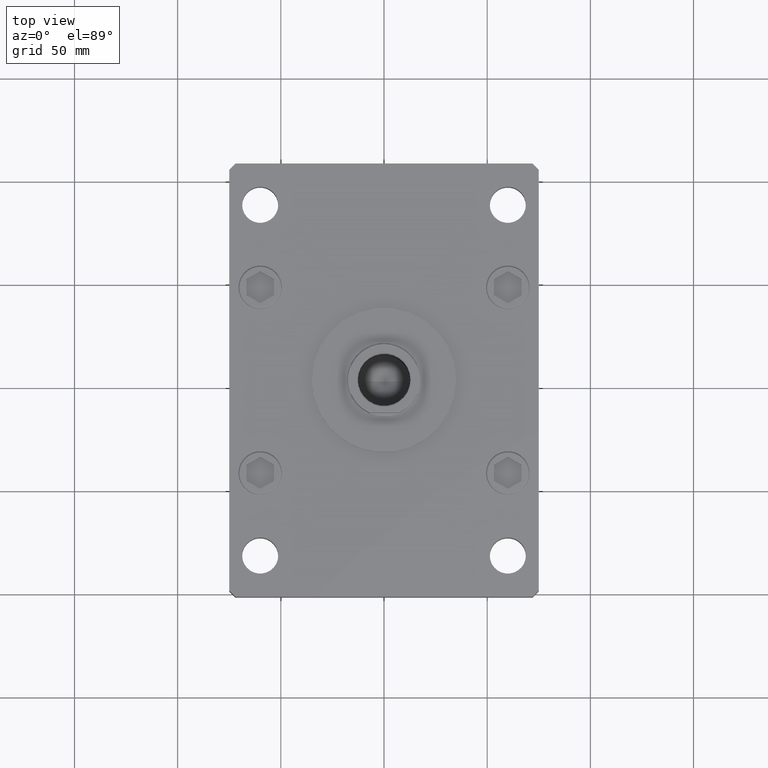
[diagram: clean part render]
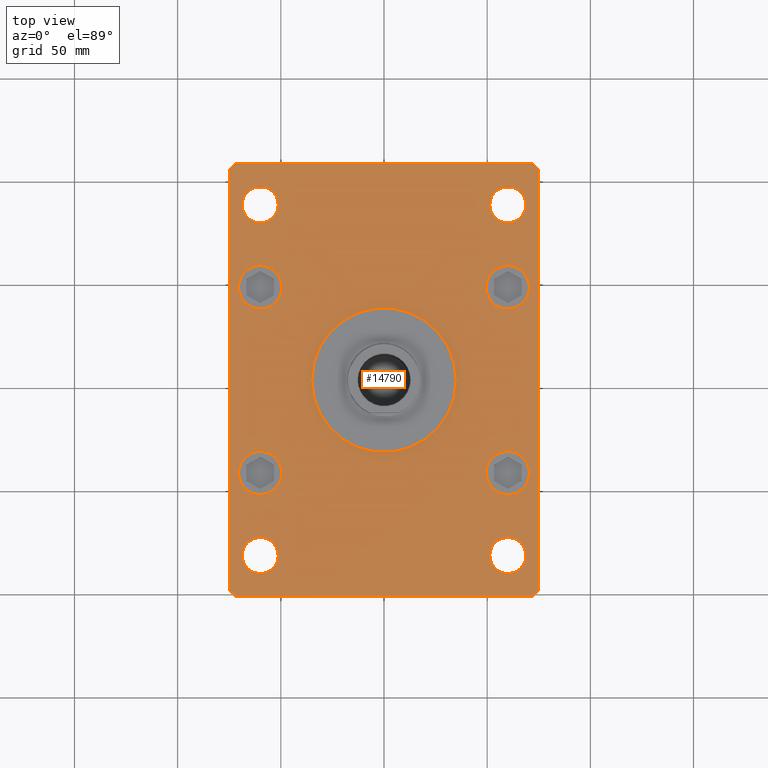
[diagram: same view with one face highlighted and labeled with its STEP entity id]
A machine part, top view. The second image highlights one B-rep face of the part: STEP entity #14790.
In plain terms, the highlighted planar face has unit normal (0, 0, 1).
Its self-contained STEP definition (entity closure, byte-faithful):
#267 = EDGE_LOOP ( 'NONE', ( #23808, #46708 ) ) ;
#318 = CARTESIAN_POINT ( 'NONE',  ( -68.74999999999997158, -85.00000000000001421, 27.00000000000000000 ) ) ;
#1099 = AXIS2_PLACEMENT_3D ( 'NONE', #13096, #36911, #21494 ) ;
#1207 = DIRECTION ( 'NONE',  ( 0.000000000000000000, 0.000000000000000000, 1.000000000000000000 ) ) ;
#1788 = EDGE_CURVE ( 'NONE', #11856, #29723, #22510, .T. ) ;
#2093 = EDGE_LOOP ( 'NONE', ( #29122, #27909 ) ) ;
#2627 = AXIS2_PLACEMENT_3D ( 'NONE', #17831, #34310, #18375 ) ;
#2673 = VECTOR ( 'NONE', #32609, 1000.000000000000000 ) ;
#2677 = DIRECTION ( 'NONE',  ( 0.7071067811865459074, 0.7071067811865491270, 0.000000000000000000 ) ) ;
#3115 = EDGE_CURVE ( 'NONE', #48423, #33778, #37918, .T. ) ;
#3130 = DIRECTION ( 'NONE',  ( 0.000000000000000000, 0.000000000000000000, 1.000000000000000000 ) ) ;
#3194 = EDGE_CURVE ( 'NONE', #22739, #17538, #29295, .T. ) ;
#3248 = DIRECTION ( 'NONE',  ( 1.000000000000000000, 0.000000000000000000, 0.000000000000000000 ) ) ;
#3357 = CIRCLE ( 'NONE', #23265, 8.750000000000007105 ) ;
#3387 = DIRECTION ( 'NONE',  ( 0.000000000000000000, 0.000000000000000000, 1.000000000000000000 ) ) ;
#3500 = EDGE_CURVE ( 'NONE', #29723, #11856, #50933, .T. ) ;
#3729 = PLANE ( 'NONE',  #21012 ) ;
#3789 = EDGE_CURVE ( 'NONE', #34593, #20591, #3357, .T. ) ;
#3826 = ORIENTED_EDGE ( 'NONE', *, *, #17094, .T. ) ;
#4953 = EDGE_CURVE ( 'NONE', #5034, #21655, #29931, .T. ) ;
#5034 = VERTEX_POINT ( 'NONE', #13167 ) ;
#5644 = CARTESIAN_POINT ( 'NONE',  ( 68.74999999999997158, -85.00000000000001421, 27.00000000000000000 ) ) ;
#5770 = DIRECTION ( 'NONE',  ( 0.000000000000000000, 0.000000000000000000, 1.000000000000000000 ) ) ;
#5784 = CARTESIAN_POINT ( 'NONE',  ( 68.75000000000000000, 84.99999999999998579, 27.00000000000000000 ) ) ;
#6185 = CARTESIAN_POINT ( 'NONE',  ( 0.000000000000000000, 0.000000000000000000, 27.00000000000000000 ) ) ;
#6378 = CARTESIAN_POINT ( 'NONE',  ( -74.99999999999998579, -102.0000000000000142, 27.00000000000000000 ) ) ;
#6907 = AXIS2_PLACEMENT_3D ( 'NONE', #10573, #22247, #10040 ) ;
#7283 = VECTOR ( 'NONE', #7426, 1000.000000000000000 ) ;
#7426 = DIRECTION ( 'NONE',  ( -1.000000000000000000, -1.927470528863118062E-16, 0.000000000000000000 ) ) ;
#7621 = DIRECTION ( 'NONE',  ( 1.000000000000000000, 0.000000000000000000, 0.000000000000000000 ) ) ;
#7710 = VECTOR ( 'NONE', #34248, 1000.000000000000114 ) ;
#7776 = FACE_BOUND ( 'NONE', #40697, .T. ) ;
#7831 = EDGE_CURVE ( 'NONE', #33239, #49473, #18624, .T. ) ;
#7932 = EDGE_CURVE ( 'NONE', #21655, #25640, #36697, .T. ) ;
#8049 = ORIENTED_EDGE ( 'NONE', *, *, #4953, .T. ) ;
#8146 = VERTEX_POINT ( 'NONE', #43167 ) ;
#8225 = CARTESIAN_POINT ( 'NONE',  ( -70.50000000000000000, 45.00000000000001421, 27.00000000000000000 ) ) ;
#9032 = CARTESIAN_POINT ( 'NONE',  ( -75.00000000000001421, 102.0000000000000000, 27.00000000000000000 ) ) ;
#9894 = EDGE_CURVE ( 'NONE', #8146, #42978, #15162, .T. ) ;
#10004 = VERTEX_POINT ( 'NONE', #50015 ) ;
#10040 = DIRECTION ( 'NONE',  ( 1.000000000000000000, 0.000000000000000000, 0.000000000000000000 ) ) ;
#10275 = DIRECTION ( 'NONE',  ( 1.000000000000000000, 0.000000000000000000, 0.000000000000000000 ) ) ;
#10573 = CARTESIAN_POINT ( 'NONE',  ( -60.00000000000000000, 45.00000000000001421, 27.00000000000000000 ) ) ;
#10614 = CARTESIAN_POINT ( 'NONE',  ( 0.000000000000000000, 0.000000000000000000, 27.00000000000000000 ) ) ;
#10786 = DIRECTION ( 'NONE',  ( 1.000000000000000000, 0.000000000000000000, 0.000000000000000000 ) ) ;
#10821 = CARTESIAN_POINT ( 'NONE',  ( 75.00000000000000000, -101.9999999999999005, 27.00000000000000000 ) ) ;
#11245 = AXIS2_PLACEMENT_3D ( 'NONE', #30307, #51437, #10275 ) ;
#11309 = EDGE_CURVE ( 'NONE', #49751, #22943, #19180, .T. ) ;
#11856 = VERTEX_POINT ( 'NONE', #33574 ) ;
#11880 = DIRECTION ( 'NONE',  ( 0.000000000000000000, 0.000000000000000000, 1.000000000000000000 ) ) ;
#12012 = LINE ( 'NONE', #28001, #7283 ) ;
#12103 = DIRECTION ( 'NONE',  ( 1.000000000000000000, 0.000000000000000000, -0.000000000000000000 ) ) ;
#12636 = FACE_BOUND ( 'NONE', #2093, .T. ) ;
#12649 = CARTESIAN_POINT ( 'NONE',  ( 70.50000000000000000, 45.00000000000000711, 27.00000000000000000 ) ) ;
#12964 = AXIS2_PLACEMENT_3D ( 'NONE', #24409, #20881, #16820 ) ;
#13096 = CARTESIAN_POINT ( 'NONE',  ( -59.99999999999997158, -85.00000000000001421, 27.00000000000000000 ) ) ;
#13167 = CARTESIAN_POINT ( 'NONE',  ( -72.00000000000002842, 105.0000000000000000, 27.00000000000000000 ) ) ;
#13753 = VERTEX_POINT ( 'NONE', #17844 ) ;
#13792 = CARTESIAN_POINT ( 'NONE',  ( 49.50000000000000000, -45.00000000000000711, 27.00000000000000000 ) ) ;
#14043 = DIRECTION ( 'NONE',  ( 1.000000000000000000, 0.000000000000000000, 0.000000000000000000 ) ) ;
#14647 = LINE ( 'NONE', #17449, #50887 ) ;
#14790 = ADVANCED_FACE ( 'NONE', ( #33198, #15915, #32655, #16167, #44844, #29139, #41328, #12636, #7776, #53525 ), #3729, .T. ) ;
#14890 = CARTESIAN_POINT ( 'NONE',  ( -60.00000000000000000, 45.00000000000001421, 27.00000000000000000 ) ) ;
#15162 = LINE ( 'NONE', #10821, #39864 ) ;
#15433 = AXIS2_PLACEMENT_3D ( 'NONE', #38290, #1207, #38015 ) ;
#15650 = CARTESIAN_POINT ( 'NONE',  ( 72.00000000000001421, -104.9999999999999005, 27.00000000000000000 ) ) ;
#15915 = FACE_BOUND ( 'NONE', #41303, .T. ) ;
#15922 = DIRECTION ( 'NONE',  ( 0.000000000000000000, 0.000000000000000000, 1.000000000000000000 ) ) ;
#15985 = CARTESIAN_POINT ( 'NONE',  ( 35.00000000000000711, 4.286263797015737285E-15, 27.00000000000000000 ) ) ;
#16167 = FACE_BOUND ( 'NONE', #21055, .T. ) ;
#16820 = DIRECTION ( 'NONE',  ( 1.000000000000000000, 0.000000000000000000, 0.000000000000000000 ) ) ;
#17056 = ORIENTED_EDGE ( 'NONE', *, *, #11309, .F. ) ;
#17094 = EDGE_CURVE ( 'NONE', #25640, #33239, #35049, .T. ) ;
#17206 = ORIENTED_EDGE ( 'NONE', *, *, #34185, .T. ) ;
#17227 = CARTESIAN_POINT ( 'NONE',  ( -72.00000000000002842, 105.0000000000000000, 27.00000000000000000 ) ) ;
#17261 = ORIENTED_EDGE ( 'NONE', *, *, #38504, .F. ) ;
#17335 = ORIENTED_EDGE ( 'NONE', *, *, #26336, .F. ) ;
#17376 = CARTESIAN_POINT ( 'NONE',  ( 70.50000000000000000, -45.00000000000000711, 27.00000000000000000 ) ) ;
#17449 = CARTESIAN_POINT ( 'NONE',  ( 75.00000000000001421, 102.0000000000000142, 27.00000000000000000 ) ) ;
#17538 = VERTEX_POINT ( 'NONE', #36976 ) ;
#17548 = CIRCLE ( 'NONE', #1099, 8.750000000000007105 ) ;
#17616 = AXIS2_PLACEMENT_3D ( 'NONE', #23254, #15922, #10786 ) ;
#17697 = CARTESIAN_POINT ( 'NONE',  ( 60.00000000000000000, -45.00000000000000711, 27.00000000000000000 ) ) ;
#17831 = CARTESIAN_POINT ( 'NONE',  ( -60.00000000000000711, 84.99999999999997158, 27.00000000000000000 ) ) ;
#17844 = CARTESIAN_POINT ( 'NONE',  ( 72.00000000000004263, 105.0000000000000284, 27.00000000000000000 ) ) ;
#18240 = ORIENTED_EDGE ( 'NONE', *, *, #3194, .F. ) ;
#18375 = DIRECTION ( 'NONE',  ( 1.000000000000000000, 0.000000000000000000, 0.000000000000000000 ) ) ;
#18403 = EDGE_LOOP ( 'NONE', ( #17056, #51574 ) ) ;
#18517 = DIRECTION ( 'NONE',  ( 1.000000000000000000, 0.000000000000000000, 0.000000000000000000 ) ) ;
#18624 = LINE ( 'NONE', #35092, #31153 ) ;
#18947 = AXIS2_PLACEMENT_3D ( 'NONE', #44254, #3387, #32057 ) ;
#19150 = ORIENTED_EDGE ( 'NONE', *, *, #20949, .F. ) ;
#19180 = CIRCLE ( 'NONE', #49396, 35.00000000000000711 ) ;
#19200 = LINE ( 'NONE', #15650, #22576 ) ;
#19616 = CARTESIAN_POINT ( 'NONE',  ( 60.00000000000000000, 45.00000000000000711, 27.00000000000000000 ) ) ;
#19826 = DIRECTION ( 'NONE',  ( 1.000000000000000000, 0.000000000000000000, 0.000000000000000000 ) ) ;
#20591 = VERTEX_POINT ( 'NONE', #39420 ) ;
#20881 = DIRECTION ( 'NONE',  ( 0.000000000000000000, 0.000000000000000000, 1.000000000000000000 ) ) ;
#20949 = EDGE_CURVE ( 'NONE', #21697, #10004, #29179, .T. ) ;
#21012 = AXIS2_PLACEMENT_3D ( 'NONE', #28878, #25102, #12103 ) ;
#21055 = EDGE_LOOP ( 'NONE', ( #34017, #48040 ) ) ;
#21405 = EDGE_LOOP ( 'NONE', ( #50141, #34784 ) ) ;
#21494 = DIRECTION ( 'NONE',  ( 1.000000000000000000, 0.000000000000000000, 0.000000000000000000 ) ) ;
#21655 = VERTEX_POINT ( 'NONE', #9032 ) ;
#21697 = VERTEX_POINT ( 'NONE', #5784 ) ;
#21755 = CIRCLE ( 'NONE', #42493, 10.50000000000000178 ) ;
#21785 = DIRECTION ( 'NONE',  ( -0.7071067811865426878, 0.7071067811865524577, 0.000000000000000000 ) ) ;
#22247 = DIRECTION ( 'NONE',  ( 0.000000000000000000, 0.000000000000000000, 1.000000000000000000 ) ) ;
#22510 = CIRCLE ( 'NONE', #11245, 10.50000000000000178 ) ;
#22576 = VECTOR ( 'NONE', #2677, 1000.000000000000114 ) ;
#22739 = VERTEX_POINT ( 'NONE', #318 ) ;
#22943 = VERTEX_POINT ( 'NONE', #15985 ) ;
#23075 = VECTOR ( 'NONE', #43182, 1000.000000000000114 ) ;
#23254 = CARTESIAN_POINT ( 'NONE',  ( 60.00000000000000000, -45.00000000000000711, 27.00000000000000000 ) ) ;
#23265 = AXIS2_PLACEMENT_3D ( 'NONE', #51392, #44041, #43517 ) ;
#23702 = ORIENTED_EDGE ( 'NONE', *, *, #35099, .F. ) ;
#23808 = ORIENTED_EDGE ( 'NONE', *, *, #3115, .F. ) ;
#23969 = CARTESIAN_POINT ( 'NONE',  ( 60.00000000000000000, 45.00000000000000711, 27.00000000000000000 ) ) ;
#24409 = CARTESIAN_POINT ( 'NONE',  ( 60.00000000000000000, 84.99999999999998579, 27.00000000000000000 ) ) ;
#24922 = CIRCLE ( 'NONE', #15433, 8.750000000000007105 ) ;
#25041 = VERTEX_POINT ( 'NONE', #52677 ) ;
#25102 = DIRECTION ( 'NONE',  ( 0.000000000000000000, 0.000000000000000000, 1.000000000000000000 ) ) ;
#25640 = VERTEX_POINT ( 'NONE', #27371 ) ;
#26336 = EDGE_CURVE ( 'NONE', #25041, #26373, #44913, .T. ) ;
#26373 = VERTEX_POINT ( 'NONE', #8225 ) ;
#26716 = CARTESIAN_POINT ( 'NONE',  ( 75.00000000000001421, 102.0000000000000142, 27.00000000000000000 ) ) ;
#27371 = CARTESIAN_POINT ( 'NONE',  ( -74.99999999999998579, -102.0000000000000142, 27.00000000000000000 ) ) ;
#27486 = EDGE_CURVE ( 'NONE', #46571, #51389, #42255, .T. ) ;
#27487 = DIRECTION ( 'NONE',  ( 1.000000000000000000, 0.000000000000000000, 0.000000000000000000 ) ) ;
#27580 = AXIS2_PLACEMENT_3D ( 'NONE', #45161, #32175, #41109 ) ;
#27643 = EDGE_CURVE ( 'NONE', #42978, #13753, #14647, .T. ) ;
#27909 = ORIENTED_EDGE ( 'NONE', *, *, #1788, .F. ) ;
#28001 = CARTESIAN_POINT ( 'NONE',  ( 72.00000000000004263, 105.0000000000000284, 27.00000000000000000 ) ) ;
#28401 = EDGE_CURVE ( 'NONE', #49346, #37224, #35364, .T. ) ;
#28878 = CARTESIAN_POINT ( 'NONE',  ( 0.000000000000000000, 0.000000000000000000, 27.00000000000000000 ) ) ;
#29122 = ORIENTED_EDGE ( 'NONE', *, *, #3500, .F. ) ;
#29139 = FACE_OUTER_BOUND ( 'NONE', #32940, .T. ) ;
#29179 = CIRCLE ( 'NONE', #51704, 8.750000000000007105 ) ;
#29295 = CIRCLE ( 'NONE', #47428, 8.750000000000007105 ) ;
#29723 = VERTEX_POINT ( 'NONE', #36570 ) ;
#29931 = LINE ( 'NONE', #17227, #7710 ) ;
#30033 = CARTESIAN_POINT ( 'NONE',  ( -35.00000000000000711, 0.000000000000000000, 27.00000000000000000 ) ) ;
#30307 = CARTESIAN_POINT ( 'NONE',  ( -60.00000000000000000, -45.00000000000000000, 27.00000000000000000 ) ) ;
#30572 = AXIS2_PLACEMENT_3D ( 'NONE', #10614, #43895, #19826 ) ;
#30656 = EDGE_CURVE ( 'NONE', #10004, #21697, #33691, .T. ) ;
#30754 = CARTESIAN_POINT ( 'NONE',  ( 72.00000000000001421, -104.9999999999999005, 27.00000000000000000 ) ) ;
#31008 = EDGE_CURVE ( 'NONE', #20591, #34593, #36302, .T. ) ;
#31153 = VECTOR ( 'NONE', #51624, 1000.000000000000000 ) ;
#31229 = DIRECTION ( 'NONE',  ( 0.000000000000000000, 0.000000000000000000, 1.000000000000000000 ) ) ;
#31816 = CARTESIAN_POINT ( 'NONE',  ( -75.00000000000001421, 102.0000000000000000, 27.00000000000000000 ) ) ;
#32057 = DIRECTION ( 'NONE',  ( 1.000000000000000000, 0.000000000000000000, 0.000000000000000000 ) ) ;
#32058 = ORIENTED_EDGE ( 'NONE', *, *, #7932, .T. ) ;
#32175 = DIRECTION ( 'NONE',  ( 0.000000000000000000, 0.000000000000000000, 1.000000000000000000 ) ) ;
#32609 = DIRECTION ( 'NONE',  ( 1.360567432138672081E-16, -1.000000000000000000, 0.000000000000000000 ) ) ;
#32655 = FACE_BOUND ( 'NONE', #267, .T. ) ;
#32940 = EDGE_LOOP ( 'NONE', ( #39473, #17206, #50773, #36575, #37085, #8049, #32058, #3826 ) ) ;
#33198 = FACE_BOUND ( 'NONE', #18403, .T. ) ;
#33239 = VERTEX_POINT ( 'NONE', #47514 ) ;
#33574 = CARTESIAN_POINT ( 'NONE',  ( -49.49999999999999289, -45.00000000000000000, 27.00000000000000000 ) ) ;
#33660 = CARTESIAN_POINT ( 'NONE',  ( 51.24999999999995737, -85.00000000000001421, 27.00000000000000000 ) ) ;
#33691 = CIRCLE ( 'NONE', #12964, 8.750000000000007105 ) ;
#33778 = VERTEX_POINT ( 'NONE', #17376 ) ;
#34017 = ORIENTED_EDGE ( 'NONE', *, *, #31008, .F. ) ;
#34139 = CARTESIAN_POINT ( 'NONE',  ( -51.25000000000000000, 84.99999999999997158, 27.00000000000000000 ) ) ;
#34185 = EDGE_CURVE ( 'NONE', #49473, #8146, #19200, .T. ) ;
#34248 = DIRECTION ( 'NONE',  ( -0.7071067811865459074, -0.7071067811865491270, 0.000000000000000000 ) ) ;
#34310 = DIRECTION ( 'NONE',  ( 0.000000000000000000, 0.000000000000000000, 1.000000000000000000 ) ) ;
#34593 = VERTEX_POINT ( 'NONE', #34139 ) ;
#34784 = ORIENTED_EDGE ( 'NONE', *, *, #27486, .F. ) ;
#35049 = LINE ( 'NONE', #6378, #23075 ) ;
#35092 = CARTESIAN_POINT ( 'NONE',  ( -71.99999999999998579, -105.0000000000000142, 27.00000000000000000 ) ) ;
#35099 = EDGE_CURVE ( 'NONE', #26373, #25041, #21755, .T. ) ;
#35364 = CIRCLE ( 'NONE', #42295, 10.49999999999999467 ) ;
#35758 = CIRCLE ( 'NONE', #17616, 10.49999999999999467 ) ;
#35965 = DIRECTION ( 'NONE',  ( 1.000000000000000000, 0.000000000000000000, 0.000000000000000000 ) ) ;
#36046 = DIRECTION ( 'NONE',  ( 0.000000000000000000, 0.000000000000000000, 1.000000000000000000 ) ) ;
#36100 = DIRECTION ( 'NONE',  ( 1.000000000000000000, 0.000000000000000000, 0.000000000000000000 ) ) ;
#36302 = CIRCLE ( 'NONE', #2627, 8.750000000000007105 ) ;
#36570 = CARTESIAN_POINT ( 'NONE',  ( -70.50000000000000000, -45.00000000000000000, 27.00000000000000000 ) ) ;
#36575 = ORIENTED_EDGE ( 'NONE', *, *, #27643, .T. ) ;
#36697 = LINE ( 'NONE', #31816, #2673 ) ;
#36911 = DIRECTION ( 'NONE',  ( 0.000000000000000000, 0.000000000000000000, 1.000000000000000000 ) ) ;
#36976 = CARTESIAN_POINT ( 'NONE',  ( -51.24999999999996447, -85.00000000000001421, 27.00000000000000000 ) ) ;
#37085 = ORIENTED_EDGE ( 'NONE', *, *, #47183, .T. ) ;
#37224 = VERTEX_POINT ( 'NONE', #43060 ) ;
#37488 = CIRCLE ( 'NONE', #42682, 10.49999999999999467 ) ;
#37918 = CIRCLE ( 'NONE', #39674, 10.49999999999999467 ) ;
#38015 = DIRECTION ( 'NONE',  ( 1.000000000000000000, 0.000000000000000000, 0.000000000000000000 ) ) ;
#38290 = CARTESIAN_POINT ( 'NONE',  ( 59.99999999999997158, -85.00000000000001421, 27.00000000000000000 ) ) ;
#38504 = EDGE_CURVE ( 'NONE', #17538, #22739, #17548, .T. ) ;
#39420 = CARTESIAN_POINT ( 'NONE',  ( -68.75000000000000000, 84.99999999999997158, 27.00000000000000000 ) ) ;
#39473 = ORIENTED_EDGE ( 'NONE', *, *, #7831, .T. ) ;
#39674 = AXIS2_PLACEMENT_3D ( 'NONE', #17697, #5770, #18517 ) ;
#39864 = VECTOR ( 'NONE', #51984, 1000.000000000000000 ) ;
#40697 = EDGE_LOOP ( 'NONE', ( #44009, #52659 ) ) ;
#41107 = EDGE_CURVE ( 'NONE', #33778, #48423, #35758, .T. ) ;
#41109 = DIRECTION ( 'NONE',  ( 1.000000000000000000, 0.000000000000000000, 0.000000000000000000 ) ) ;
#41303 = EDGE_LOOP ( 'NONE', ( #23702, #17335 ) ) ;
#41328 = FACE_BOUND ( 'NONE', #51514, .T. ) ;
#42255 = CIRCLE ( 'NONE', #18947, 8.750000000000007105 ) ;
#42295 = AXIS2_PLACEMENT_3D ( 'NONE', #23969, #3130, #27487 ) ;
#42493 = AXIS2_PLACEMENT_3D ( 'NONE', #14890, #47890, #35965 ) ;
#42682 = AXIS2_PLACEMENT_3D ( 'NONE', #19616, #31229, #36100 ) ;
#42725 = DIRECTION ( 'NONE',  ( 0.000000000000000000, 0.000000000000000000, 1.000000000000000000 ) ) ;
#42978 = VERTEX_POINT ( 'NONE', #26716 ) ;
#43060 = CARTESIAN_POINT ( 'NONE',  ( 49.50000000000000000, 45.00000000000000711, 27.00000000000000000 ) ) ;
#43167 = CARTESIAN_POINT ( 'NONE',  ( 75.00000000000000000, -101.9999999999999005, 27.00000000000000000 ) ) ;
#43182 = DIRECTION ( 'NONE',  ( 0.7071067811865474617, -0.7071067811865474617, 0.000000000000000000 ) ) ;
#43517 = DIRECTION ( 'NONE',  ( 1.000000000000000000, 0.000000000000000000, 0.000000000000000000 ) ) ;
#43895 = DIRECTION ( 'NONE',  ( 0.000000000000000000, 0.000000000000000000, 1.000000000000000000 ) ) ;
#44009 = ORIENTED_EDGE ( 'NONE', *, *, #45804, .F. ) ;
#44041 = DIRECTION ( 'NONE',  ( 0.000000000000000000, 0.000000000000000000, 1.000000000000000000 ) ) ;
#44254 = CARTESIAN_POINT ( 'NONE',  ( 59.99999999999997158, -85.00000000000001421, 27.00000000000000000 ) ) ;
#44844 = FACE_BOUND ( 'NONE', #47157, .T. ) ;
#44913 = CIRCLE ( 'NONE', #6907, 10.50000000000000178 ) ;
#45161 = CARTESIAN_POINT ( 'NONE',  ( -60.00000000000000000, -45.00000000000000000, 27.00000000000000000 ) ) ;
#45662 = ORIENTED_EDGE ( 'NONE', *, *, #30656, .F. ) ;
#45804 = EDGE_CURVE ( 'NONE', #37224, #49346, #37488, .T. ) ;
#46177 = EDGE_CURVE ( 'NONE', #22943, #49751, #47009, .T. ) ;
#46571 = VERTEX_POINT ( 'NONE', #5644 ) ;
#46708 = ORIENTED_EDGE ( 'NONE', *, *, #41107, .F. ) ;
#47009 = CIRCLE ( 'NONE', #30572, 35.00000000000000711 ) ;
#47157 = EDGE_LOOP ( 'NONE', ( #18240, #17261 ) ) ;
#47183 = EDGE_CURVE ( 'NONE', #13753, #5034, #12012, .T. ) ;
#47428 = AXIS2_PLACEMENT_3D ( 'NONE', #52851, #36046, #7621 ) ;
#47514 = CARTESIAN_POINT ( 'NONE',  ( -71.99999999999998579, -105.0000000000000142, 27.00000000000000000 ) ) ;
#47890 = DIRECTION ( 'NONE',  ( 0.000000000000000000, 0.000000000000000000, 1.000000000000000000 ) ) ;
#48040 = ORIENTED_EDGE ( 'NONE', *, *, #3789, .F. ) ;
#48423 = VERTEX_POINT ( 'NONE', #13792 ) ;
#49346 = VERTEX_POINT ( 'NONE', #12649 ) ;
#49396 = AXIS2_PLACEMENT_3D ( 'NONE', #6185, #42725, #14043 ) ;
#49473 = VERTEX_POINT ( 'NONE', #30754 ) ;
#49751 = VERTEX_POINT ( 'NONE', #30033 ) ;
#50015 = CARTESIAN_POINT ( 'NONE',  ( 51.24999999999998579, 84.99999999999998579, 27.00000000000000000 ) ) ;
#50141 = ORIENTED_EDGE ( 'NONE', *, *, #52203, .F. ) ;
#50773 = ORIENTED_EDGE ( 'NONE', *, *, #9894, .T. ) ;
#50887 = VECTOR ( 'NONE', #21785, 1000.000000000000000 ) ;
#50933 = CIRCLE ( 'NONE', #27580, 10.50000000000000178 ) ;
#51389 = VERTEX_POINT ( 'NONE', #33660 ) ;
#51392 = CARTESIAN_POINT ( 'NONE',  ( -60.00000000000000711, 84.99999999999997158, 27.00000000000000000 ) ) ;
#51437 = DIRECTION ( 'NONE',  ( 0.000000000000000000, 0.000000000000000000, 1.000000000000000000 ) ) ;
#51514 = EDGE_LOOP ( 'NONE', ( #45662, #19150 ) ) ;
#51574 = ORIENTED_EDGE ( 'NONE', *, *, #46177, .F. ) ;
#51624 = DIRECTION ( 'NONE',  ( 1.000000000000000000, 7.709882115452476194E-16, 0.000000000000000000 ) ) ;
#51704 = AXIS2_PLACEMENT_3D ( 'NONE', #51990, #11880, #3248 ) ;
#51984 = DIRECTION ( 'NONE',  ( 6.802837160693364103E-17, 1.000000000000000000, 0.000000000000000000 ) ) ;
#51990 = CARTESIAN_POINT ( 'NONE',  ( 60.00000000000000000, 84.99999999999998579, 27.00000000000000000 ) ) ;
#52203 = EDGE_CURVE ( 'NONE', #51389, #46571, #24922, .T. ) ;
#52659 = ORIENTED_EDGE ( 'NONE', *, *, #28401, .F. ) ;
#52677 = CARTESIAN_POINT ( 'NONE',  ( -49.49999999999999289, 45.00000000000001421, 27.00000000000000000 ) ) ;
#52851 = CARTESIAN_POINT ( 'NONE',  ( -59.99999999999997158, -85.00000000000001421, 27.00000000000000000 ) ) ;
#53525 = FACE_BOUND ( 'NONE', #21405, .T. ) ;